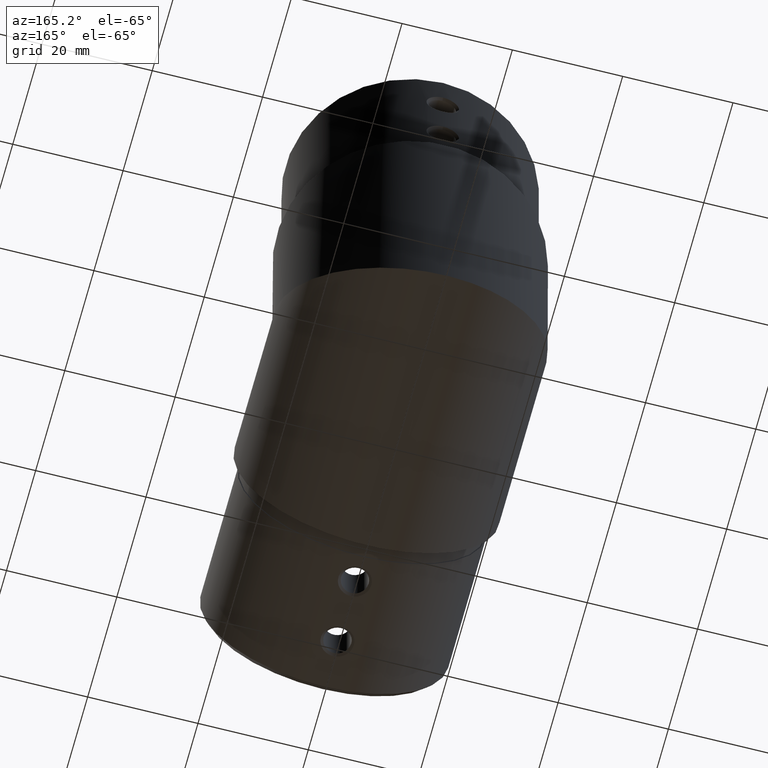
[diagram: clean part render]
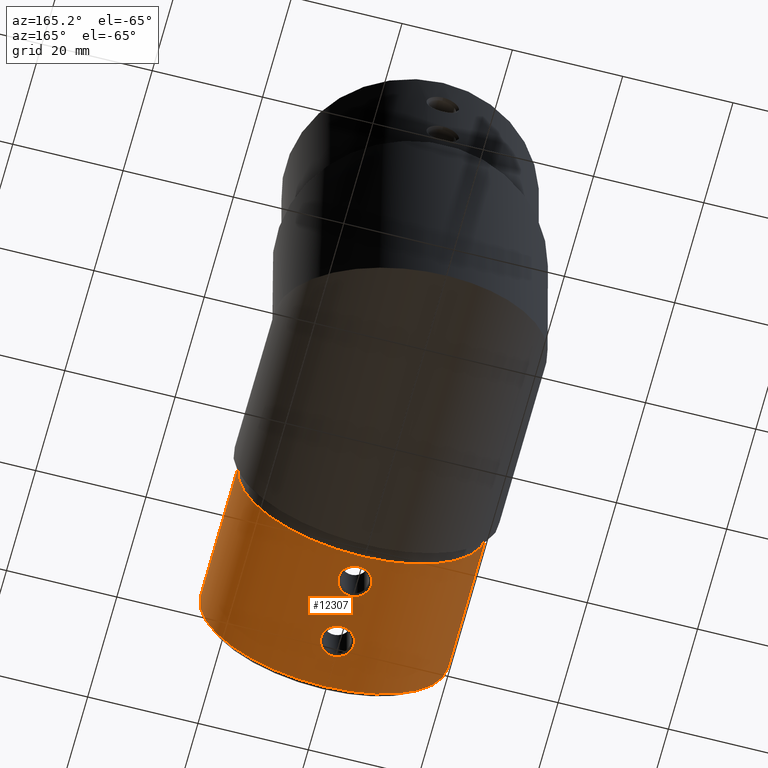
[diagram: same view with one face highlighted and labeled with its STEP entity id]
A machine part, auxiliary view. The second image highlights one B-rep face of the part: STEP entity #12307.
In plain terms, the highlighted cylindrical surface (partial cylindrical patch) has radius 22.6 mm, axis along (-0, 1, 0).
Its self-contained STEP definition (entity closure, byte-faithful):
#543 = EDGE_CURVE ( 'NONE', #2786, #13489, #6899, .T. ) ;
#562 = ORIENTED_EDGE ( 'NONE', *, *, #16241, .T. ) ;
#581 = CARTESIAN_POINT ( 'NONE',  ( -1.326337698880839300, -5.359213336770104700, -22.56176959929415200 ) ) ;
#657 = EDGE_LOOP ( 'NONE', ( #19417 ) ) ;
#667 = CARTESIAN_POINT ( 'NONE',  ( -2.390604519456232900, -6.193039404686122600, -22.47490955274698600 ) ) ;
#683 = AXIS2_PLACEMENT_3D ( 'NONE', #1162, #9286, #24886 ) ;
#758 = CARTESIAN_POINT ( 'NONE',  ( -2.613178896363155300, -9.480944656250821700, -22.44892643107421600 ) ) ;
#774 = DIRECTION ( 'NONE',  ( 0.0000000000000000000, 1.151365138922659600E-016, -1.000000000000000000 ) ) ;
#842 = CARTESIAN_POINT ( 'NONE',  ( -1.977102082033717500, -10.21335442795362200, -22.51378296659726500 ) ) ;
#897 = B_SPLINE_CURVE_WITH_KNOTS ( 'NONE', 3,
 ( #22359, #18223, #8723, #24150, #18406, #2904, #6637, #14278, #16601, #12413, #581, #16349, #24332, #14366, #16434, #8547, #667, #4875, #6457, #20392, #2644, #4622, #20304, #10617, #22097, #22189, #18313, #6552, #4709, #8633, #22272, #10531, #24240, #12502, #758, #22449, #12586, #842, #2555, #2823, #14546, #16516, #4790, #6722, #20479, #10347, #24414, #12672, #6378, #24061, #14631, #16264, #8367, #12325, #4532, #6812, #22862, #20570, #22614, #14882, #7139, #22699, #10864, #1181, #18580, #14803, #3159, #17016, #16862, #20815, #3323, #1346, #5193, #1095, #4959, #20895, #18672, #6974, #9142, #1011, #15050, #8810, #2989, #12842, #22529, #11030, #1265, #5116, #14716, #3075, #16687, #16775, #10944, #3235 ),
 .UNSPECIFIED., .T., .F.,
 ( 4, 3, 3, 3, 3, 3, 3, 3, 3, 3, 3, 3, 3, 3, 3, 3, 3, 3, 3, 3, 3, 3, 3, 3, 3, 3, 3, 3, 3, 3, 3, 4 ),
 ( 0.0000000000000000000, 0.03225806451612903100, 0.06451612903225806300, 0.09677419354838709400, 0.1290322580645161300, 0.1612903225806451600, 0.1935483870967741900, 0.2258064516129032200, 0.2580645161290322500, 0.2903225806451613100, 0.3225806451612903100, 0.3548387096774193700, 0.3870967741935483800, 0.4193548387096774400, 0.4516129032258064400, 0.4838709677419355000, 0.5161290322580645000, 0.5483870967741935100, 0.5806451612903226200, 0.6129032258064516200, 0.6451612903225806300, 0.6774193548387096300, 0.7096774193548387500, 0.7419354838709677500, 0.7741935483870967500, 0.8064516129032257600, 0.8387096774193548700, 0.8709677419354838700, 0.9032258064516128800, 0.9354838709677418800, 0.9677419354838710000, 1.000000000000000000 ),
 .UNSPECIFIED. ) ;
#1011 = CARTESIAN_POINT ( 'NONE',  ( 2.687973759435458000, -6.697077862210337100, -22.43970750469710000 ) ) ;
#1095 = CARTESIAN_POINT ( 'NONE',  ( 2.971803728754243600, -8.384251366339093200, -22.40379175687139600 ) ) ;
#1162 = CARTESIAN_POINT ( 'NONE',  ( 0.0000000000000000000, -28.99999999999995700, -9.908740494779514200E-015 ) ) ;
#1181 = CARTESIAN_POINT ( 'NONE',  ( 2.487021273415073600, -9.632363798055436600, -22.46274082087003900 ) ) ;
#1187 = ORIENTED_EDGE ( 'NONE', *, *, #21586, .T. ) ;
#1233 = CARTESIAN_POINT ( 'NONE',  ( -0.7738739005273017600, -17.15989228895323400, -22.58694319684312600 ) ) ;
#1265 = CARTESIAN_POINT ( 'NONE',  ( 1.823197565090483300, -5.662675194427818000, -22.52692544673682200 ) ) ;
#1317 = CARTESIAN_POINT ( 'NONE',  ( -1.497696329826864600, -17.44909389216724400, -22.55091547564228100 ) ) ;
#1346 = CARTESIAN_POINT ( 'NONE',  ( 2.894935648767667800, -8.763426603945360300, -22.41385397643587800 ) ) ;
#1397 = CARTESIAN_POINT ( 'NONE',  ( -1.325735578226284500, -22.63587769916164700, -22.56124937271163600 ) ) ;
#1476 = CARTESIAN_POINT ( 'NONE',  ( -2.933401760772099500, -20.57368071205420900, -22.40881866832563300 ) ) ;
#1553 = CARTESIAN_POINT ( 'NONE',  ( 2.541295919897478500, -21.55254841856661900, -22.45673166101349600 ) ) ;
#1632 = CARTESIAN_POINT ( 'NONE',  ( -2.861469272052121800, -19.14474227148361500, -22.41811753036150600 ) ) ;
#1680 = DIRECTION ( 'NONE',  ( -0.0000000000000000000, 1.000000000000000000, 2.220446049250313100E-016 ) ) ;
#1715 = CARTESIAN_POINT ( 'NONE',  ( 0.1969980630692054500, -22.93853415989483900, -22.59999972237803000 ) ) ;
#1798 = CARTESIAN_POINT ( 'NONE',  ( 1.498995650706480300, -17.44995110705806200, -22.55081886502875600 ) ) ;
#1886 = CARTESIAN_POINT ( 'NONE',  ( 2.115087779833775300, -17.92230487277924000, -22.50080895620418200 ) ) ;
#1949 = VERTEX_POINT ( 'NONE', #23921 ) ;
#2052 = CARTESIAN_POINT ( 'NONE',  ( 1.145928378313880700, -17.28569521411270700, -22.57092927089568200 ) ) ;
#2139 = CARTESIAN_POINT ( 'NONE',  ( 16.87330316742082200, -3.000000000000011500, 15.03501380845081000 ) ) ;
#2555 = CARTESIAN_POINT ( 'NONE',  ( -1.826053440657694700, -10.33520990646318600, -22.52669625764502100 ) ) ;
#2644 = CARTESIAN_POINT ( 'NONE',  ( -2.832794729824117800, -7.052143573989511100, -22.42177757547298700 ) ) ;
#2786 = VERTEX_POINT ( 'NONE', #2139 ) ;
#2823 = CARTESIAN_POINT ( 'NONE',  ( -1.663659575475260800, -10.44200332703378500, -22.53868312073555600 ) ) ;
#2904 = CARTESIAN_POINT ( 'NONE',  ( -0.7738739005273651500, -5.159892288953273000, -22.58694319684312300 ) ) ;
#2989 = CARTESIAN_POINT ( 'NONE',  ( 2.377100146294064000, -6.206235922144014000, -22.47490535153881900 ) ) ;
#3075 = CARTESIAN_POINT ( 'NONE',  ( 1.327890010846826800, -5.359850248977938500, -22.56169106027611100 ) ) ;
#3159 = CARTESIAN_POINT ( 'NONE',  ( 2.637630470259763700, -9.385499585644453200, -22.44555424805450300 ) ) ;
#3235 = CARTESIAN_POINT ( 'NONE',  ( 2.767701766073018500E-015, -5.061466985404423200, -22.60000000000000500 ) ) ;
#3294 = CARTESIAN_POINT ( 'NONE',  ( -1.977412743205716300, -17.78701949435175700, -22.51375082446630300 ) ) ;
#3323 = CARTESIAN_POINT ( 'NONE',  ( 2.838436988517620400, -8.946070712556846200, -22.42117168712738400 ) ) ;
#3375 = CARTESIAN_POINT ( 'NONE',  ( 0.7779561896573219400, -22.84386517411879000, -22.58741769300685900 ) ) ;
#3457 = CARTESIAN_POINT ( 'NONE',  ( -1.582462642883853700, -22.49540003731581100, -22.54467655228083700 ) ) ;
#3534 = CARTESIAN_POINT ( 'NONE',  ( -2.392648004980347600, -21.80481490877142300, -22.47471156574810500 ) ) ;
#3611 = CARTESIAN_POINT ( 'NONE',  ( -2.890143814281124900, -19.23734096898104800, -22.41445748524989800 ) ) ;
#3666 = CARTESIAN_POINT ( 'NONE',  ( -16.87330316742081800, -3.000000000000009800, 15.03501380845080800 ) ) ;
#3685 = CARTESIAN_POINT ( 'NONE',  ( -2.990952906805681300, -19.99834613347144000, -22.40120980459026300 ) ) ;
#4092 = FACE_BOUND ( 'NONE', #14907, .T. ) ;
#4099 = AXIS2_PLACEMENT_3D ( 'NONE', #5447, #1680, #21215 ) ;
#4117 = CARTESIAN_POINT ( 'NONE',  ( 2.767701766073018500E-015, -17.06146698540439700, -22.60000000000000900 ) ) ;
#4349 = EDGE_LOOP ( 'NONE', ( #23498, #562, #24398, #1187 ) ) ;
#4532 = CARTESIAN_POINT ( 'NONE',  ( 0.5865686762982075300, -10.88146977777764400, -22.59238670853493900 ) ) ;
#4622 = CARTESIAN_POINT ( 'NONE',  ( -2.861469272052092000, -7.144742271483621300, -22.41811753036151000 ) ) ;
#4709 = CARTESIAN_POINT ( 'NONE',  ( -2.991098280361415000, -8.190834749636358900, -22.40119039468058300 ) ) ;
#4790 = CARTESIAN_POINT ( 'NONE',  ( -1.412445431428197600, -10.59022999176591500, -22.55581960167349100 ) ) ;
#4875 = CARTESIAN_POINT ( 'NONE',  ( -2.613044481667943200, -6.519646402548486800, -22.44893621583444700 ) ) ;
#4925 = CARTESIAN_POINT ( 'NONE',  ( -2.390604519445221200, -18.19303940470040700, -22.47490955274802400 ) ) ;
#4959 = CARTESIAN_POINT ( 'NONE',  ( 2.991013700202139100, -8.189898829850953600, -22.40120168760934800 ) ) ;
#5116 = CARTESIAN_POINT ( 'NONE',  ( 1.661096607872172500, -5.556313150729121900, -22.53887215588472500 ) ) ;
#5193 = CARTESIAN_POINT ( 'NONE',  ( 2.933369688760955700, -8.573838985142227600, -22.40882286665363700 ) ) ;
#5310 = VERTEX_POINT ( 'NONE', #6454 ) ;
#5326 = CARTESIAN_POINT ( 'NONE',  ( -2.971600802076045600, -19.61475383865677800, -22.40381835401876400 ) ) ;
#5401 = LINE ( 'NONE', #11085, #19810 ) ;
#5408 = CARTESIAN_POINT ( 'NONE',  ( -2.990807533249906700, -19.80585751730891500, -22.40122921449995300 ) ) ;
#5447 = CARTESIAN_POINT ( 'NONE',  ( 0.0000000000000000000, -29.99999999999999300, -1.013078509970455300E-014 ) ) ;
#5473 = CARTESIAN_POINT ( 'NONE',  ( 2.684033548438164600, -21.30024483960096400, -22.44010131196014500 ) ) ;
#5551 = CARTESIAN_POINT ( 'NONE',  ( -1.663659575475291000, -22.44200332703381700, -22.53868312073555600 ) ) ;
#5624 = CARTESIAN_POINT ( 'NONE',  ( 0.3951811629390930000, -22.91907438143658400, -22.59735572406301800 ) ) ;
#5648 = EDGE_CURVE ( 'NONE', #21887, #21887, #11102, .T. ) ;
#5880 = CARTESIAN_POINT ( 'NONE',  ( 1.976558561754066200, -17.78617842668112900, -22.51383077496992900 ) ) ;
#6053 = CARTESIAN_POINT ( 'NONE',  ( 1.823197565037884400, -17.66267519440014400, -22.52692544674070200 ) ) ;
#6378 = CARTESIAN_POINT ( 'NONE',  ( -0.5865997516973574500, -10.88146367151698100, -22.59238590169947300 ) ) ;
#6454 = CARTESIAN_POINT ( 'NONE',  ( 2.767701766073018500E-015, -5.061466985404423200, -22.60000000000000500 ) ) ;
#6457 = CARTESIAN_POINT ( 'NONE',  ( -2.762707068371181900, -6.874112676306205000, -22.43050266165188200 ) ) ;
#6552 = CARTESIAN_POINT ( 'NONE',  ( -2.990952906805640900, -7.998346133471430100, -22.40120980459027000 ) ) ;
#6637 = CARTESIAN_POINT ( 'NONE',  ( -0.8680582148432545200, -5.187948653608940800, -22.58332293830213200 ) ) ;
#6722 = CARTESIAN_POINT ( 'NONE',  ( -1.325735578231539600, -10.63587769915537800, -22.56124937271130900 ) ) ;
#6812 = CARTESIAN_POINT ( 'NONE',  ( 0.7779561895228125400, -10.84386517415203400, -22.58741769301035200 ) ) ;
#6899 = CIRCLE ( 'NONE', #24190, 22.60000000000000100 ) ;
#6974 = CARTESIAN_POINT ( 'NONE',  ( 2.912292899449808300, -7.228464680262484300, -22.41207829227147000 ) ) ;
#7028 = CARTESIAN_POINT ( 'NONE',  ( -0.1965416074626311100, -17.06146707797937600, -22.60000000000000900 ) ) ;
#7108 = CARTESIAN_POINT ( 'NONE',  ( -0.9622425291592274800, -17.21600501826461000, -22.57970267976114800 ) ) ;
#7139 = CARTESIAN_POINT ( 'NONE',  ( 2.115986901070406200, -10.07681125114746700, -22.50072442021587100 ) ) ;
#7266 = CARTESIAN_POINT ( 'NONE',  ( -0.7796886660452817500, -22.84351257797207800, -22.58737244673703900 ) ) ;
#7343 = CARTESIAN_POINT ( 'NONE',  ( -0.1969343592547744300, -22.93853186896308900, -22.60000027757709500 ) ) ;
#7418 = CARTESIAN_POINT ( 'NONE',  ( 1.509708611825870900, -22.56606131693030900, -22.55245953473893300 ) ) ;
#7503 = CARTESIAN_POINT ( 'NONE',  ( -2.800122715066272900, -18.96272924480776100, -22.42589427310387200 ) ) ;
#7589 = CARTESIAN_POINT ( 'NONE',  ( 2.594638885741125100, -18.52565139544481500, -22.45083127010534000 ) ) ;
#8367 = CARTESIAN_POINT ( 'NONE',  ( 0.1969980629276083300, -10.93853415990857200, -22.59999972237803000 ) ) ;
#8547 = CARTESIAN_POINT ( 'NONE',  ( -2.115143335285531600, -5.922359464467992200, -22.50080373389354100 ) ) ;
#8633 = CARTESIAN_POINT ( 'NONE',  ( -2.971493726775368000, -8.385648327147610100, -22.40383228141255900 ) ) ;
#8723 = CARTESIAN_POINT ( 'NONE',  ( -0.3916466878908976300, -5.080439317169457100, -22.59742119764640800 ) ) ;
#8810 = CARTESIAN_POINT ( 'NONE',  ( 2.485869516017699300, -6.365943658798020300, -22.46286831082206700 ) ) ;
#9142 = CARTESIAN_POINT ( 'NONE',  ( 2.762746806106908300, -6.874206801561052200, -22.43049776722189000 ) ) ;
#9145 = CIRCLE ( 'NONE', #683, 22.60000000000000100 ) ;
#9269 = CARTESIAN_POINT ( 'NONE',  ( -2.933350360385683900, -19.42606565261733900, -22.40882539677672700 ) ) ;
#9286 = DIRECTION ( 'NONE',  ( -0.0000000000000000000, 1.000000000000000000, 2.220446049250313100E-016 ) ) ;
#9345 = CARTESIAN_POINT ( 'NONE',  ( -2.914225139540502800, -19.33172155959761800, -22.41132891815570700 ) ) ;
#9419 = CARTESIAN_POINT ( 'NONE',  ( 3.185190721551148500E-005, -22.93853301442896600, -22.59999999997756200 ) ) ;
#9493 = CARTESIAN_POINT ( 'NONE',  ( 2.115986901070435500, -22.07681125114750400, -22.50072442021586700 ) ) ;
#9573 = CARTESIAN_POINT ( 'NONE',  ( -1.145841142355355400, -22.71434033402758600, -22.57093369970516200 ) ) ;
#10347 = CARTESIAN_POINT ( 'NONE',  ( -1.145841142355345200, -10.71434033402754300, -22.57093369970516200 ) ) ;
#10531 = CARTESIAN_POINT ( 'NONE',  ( -2.895309794768751800, -8.761713096960788100, -22.41380505523872600 ) ) ;
#10617 = CARTESIAN_POINT ( 'NONE',  ( -2.914225139547568200, -7.331721559634393900, -22.41132891815477600 ) ) ;
#10836 = FACE_OUTER_BOUND ( 'NONE', #4349, .T. ) ;
#10864 = CARTESIAN_POINT ( 'NONE',  ( 2.378471980544246000, -9.791994556888095500, -22.47475914057272900 ) ) ;
#10944 = CARTESIAN_POINT ( 'NONE',  ( 0.3934408959884866400, -5.061466800086005700, -22.60000000000000500 ) ) ;
#10996 = CARTESIAN_POINT ( 'NONE',  ( -0.5834991309870424200, -17.11792871956680200, -22.59246619482117800 ) ) ;
#11030 = CARTESIAN_POINT ( 'NONE',  ( 1.976558561793002600, -5.786178426719424700, -22.51383077496626200 ) ) ;
#11085 = CARTESIAN_POINT ( 'NONE',  ( -16.87330316742081800, -29.99999999999999600, 15.03501380845080400 ) ) ;
#11102 = B_SPLINE_CURVE_WITH_KNOTS ( 'NONE', 3,
 ( #16827, #7028, #22750, #10996, #12971, #1233, #18876, #7108, #18960, #13047, #22916, #1317, #15017, #11158, #3294, #16651, #4925, #16987, #24871, #7503, #17389, #1632, #3611, #9345, #9269, #5326, #5408, #3685, #11307, #21249, #1476, #17306, #19198, #15253, #17067, #3534, #21024, #15416, #19047, #5551, #3457, #17147, #23068, #1397, #19277, #9573, #22992, #7266, #11542, #19127, #7343, #9419, #1715, #5624, #13126, #3375, #21100, #15177, #7418, #15099, #9493, #11237, #25029, #23220, #1553, #17230, #13280, #5473, #21171, #11465, #23143, #11384, #13200, #24954, #25105, #13359, #15329, #25185, #13445, #19357, #7589, #21334, #23307, #21767, #1886, #5880, #6053, #25352, #1798, #15489, #2052, #23392, #19701, #4117 ),
 .UNSPECIFIED., .T., .F.,
 ( 4, 3, 3, 3, 3, 3, 3, 3, 3, 3, 3, 3, 3, 3, 3, 3, 3, 3, 3, 3, 3, 3, 3, 3, 3, 3, 3, 3, 3, 3, 3, 4 ),
 ( 0.0000000000000000000, 0.03225806451612903100, 0.06451612903225806300, 0.09677419354838709400, 0.1290322580645161300, 0.1612903225806451600, 0.1935483870967741900, 0.2258064516129032200, 0.2580645161290322500, 0.2903225806451613100, 0.3225806451612903100, 0.3548387096774193700, 0.3870967741935483800, 0.4193548387096774400, 0.4516129032258064400, 0.4838709677419355000, 0.5161290322580645000, 0.5483870967741935100, 0.5806451612903226200, 0.6129032258064516200, 0.6451612903225806300, 0.6774193548387096300, 0.7096774193548387500, 0.7419354838709677500, 0.7741935483870967500, 0.8064516129032257600, 0.8387096774193548700, 0.8709677419354838700, 0.9032258064516128800, 0.9354838709677418800, 0.9677419354838710000, 1.000000000000000000 ),
 .UNSPECIFIED. ) ;
#11158 = CARTESIAN_POINT ( 'NONE',  ( -1.824730499025512200, -17.66368569811348600, -22.52681161842184900 ) ) ;
#11237 = CARTESIAN_POINT ( 'NONE',  ( 2.254570409734729000, -21.94052367489877400, -22.48769191141475000 ) ) ;
#11307 = CARTESIAN_POINT ( 'NONE',  ( -2.991098280361455400, -20.19083474963396400, -22.40119039468057600 ) ) ;
#11384 = CARTESIAN_POINT ( 'NONE',  ( 2.894935648768384200, -20.76342660394551500, -22.41385397643578900 ) ) ;
#11465 = CARTESIAN_POINT ( 'NONE',  ( 2.763739915961720900, -21.12343785515739500, -22.43037542434188200 ) ) ;
#11542 = CARTESIAN_POINT ( 'NONE',  ( -0.5865997516973775500, -22.88146367151702500, -22.59238590169946900 ) ) ;
#12030 = DIRECTION ( 'NONE',  ( 0.0000000000000000000, -1.000000000000000000, -2.220446049250313100E-016 ) ) ;
#12042 = FACE_BOUND ( 'NONE', #657, .T. ) ;
#12307 = ADVANCED_FACE ( 'NONE', ( #12042, #4092, #10836 ), #24944, .T. ) ;
#12325 = CARTESIAN_POINT ( 'NONE',  ( 0.3951811630736025700, -10.91907438140325400, -22.59735572405952200 ) ) ;
#12413 = CARTESIAN_POINT ( 'NONE',  ( -1.145962326133435500, -5.285709048506994600, -22.57092754733582400 ) ) ;
#12502 = CARTESIAN_POINT ( 'NONE',  ( -2.763704227972418900, -9.123522596018865700, -22.43037982157876400 ) ) ;
#12586 = CARTESIAN_POINT ( 'NONE',  ( -2.115617389682282300, -10.07717458823106000, -22.50075916631424300 ) ) ;
#12672 = CARTESIAN_POINT ( 'NONE',  ( -0.7796886660753206100, -10.84351257796911300, -22.58737244673626100 ) ) ;
#12842 = CARTESIAN_POINT ( 'NONE',  ( 2.253616997874507100, -6.058431318839081000, -22.48778713744209400 ) ) ;
#12971 = CARTESIAN_POINT ( 'NONE',  ( -0.6794253524677395000, -17.13667342074543100, -22.58998869341029800 ) ) ;
#13047 = CARTESIAN_POINT ( 'NONE',  ( -1.145962326133455700, -17.28570904850697000, -22.57092754733582800 ) ) ;
#13080 = ORIENTED_EDGE ( 'NONE', *, *, #5648, .T. ) ;
#13126 = CARTESIAN_POINT ( 'NONE',  ( 0.5865686762982075300, -22.88146977777768900, -22.59238670853493900 ) ) ;
#13200 = CARTESIAN_POINT ( 'NONE',  ( 2.933369688760995200, -20.57383898514224500, -22.40882286665363300 ) ) ;
#13280 = CARTESIAN_POINT ( 'NONE',  ( 2.637630470259793500, -21.38549958564447500, -22.44555424805450300 ) ) ;
#13359 = CARTESIAN_POINT ( 'NONE',  ( 2.990953015053389400, -19.99854733156922400, -22.40120979013730500 ) ) ;
#13445 = CARTESIAN_POINT ( 'NONE',  ( 2.762746806106948200, -18.87420680156105500, -22.43049776722189000 ) ) ;
#13489 = VERTEX_POINT ( 'NONE', #3666 ) ;
#14278 = CARTESIAN_POINT ( 'NONE',  ( -0.9622425291591438800, -5.216005018264608500, -22.57970267976114400 ) ) ;
#14366 = CARTESIAN_POINT ( 'NONE',  ( -1.824730499117604100, -5.663685698180874100, -22.52681161841506000 ) ) ;
#14546 = CARTESIAN_POINT ( 'NONE',  ( -1.582462642884044000, -10.49540003731908500, -22.54467655228082600 ) ) ;
#14631 = CARTESIAN_POINT ( 'NONE',  ( -0.1969343591131572400, -10.93853186894927100, -22.60000027757709500 ) ) ;
#14716 = CARTESIAN_POINT ( 'NONE',  ( 1.498995650653861800, -5.449951107030425800, -22.55081886503263200 ) ) ;
#14803 = CARTESIAN_POINT ( 'NONE',  ( 2.591227392113582400, -9.470754331615044200, -22.45100718414508000 ) ) ;
#14882 = CARTESIAN_POINT ( 'NONE',  ( 1.838819883965221200, -10.34938640343890300, -22.52678943779710300 ) ) ;
#14907 = EDGE_LOOP ( 'NONE', ( #13080 ) ) ;
#15017 = CARTESIAN_POINT ( 'NONE',  ( -1.661213414426188300, -17.55638979514036500, -22.53886354703206500 ) ) ;
#15050 = CARTESIAN_POINT ( 'NONE',  ( 2.594638885741334700, -6.525651395452026500, -22.45083127010531500 ) ) ;
#15099 = CARTESIAN_POINT ( 'NONE',  ( 1.838819883741849000, -22.34938640364496000, -22.52678943781810600 ) ) ;
#15177 = CARTESIAN_POINT ( 'NONE',  ( 1.145964066256060400, -22.71429024234638700, -22.57092745898693300 ) ) ;
#15253 = CARTESIAN_POINT ( 'NONE',  ( -2.763704227972448600, -21.12352259601889100, -22.43037982157876100 ) ) ;
#15329 = CARTESIAN_POINT ( 'NONE',  ( 2.990831644755828700, -19.61584433500538400, -22.40122599519322900 ) ) ;
#15416 = CARTESIAN_POINT ( 'NONE',  ( -1.977102082033295200, -22.21335442796092600, -22.51378296659730400 ) ) ;
#15489 = CARTESIAN_POINT ( 'NONE',  ( 1.327890010846980900, -17.35985024897798100, -22.56169106027610700 ) ) ;
#16241 = EDGE_CURVE ( 'NONE', #2786, #23058, #20218, .T. ) ;
#16264 = CARTESIAN_POINT ( 'NONE',  ( 3.185190722554790400E-005, -10.93853301442892200, -22.59999999997756200 ) ) ;
#16349 = CARTESIAN_POINT ( 'NONE',  ( -1.497696329734732300, -5.449093892099908100, -22.55091547564907000 ) ) ;
#16365 = DIRECTION ( 'NONE',  ( -0.0000000000000000000, 1.000000000000000000, 1.058152263001196400E-016 ) ) ;
#16434 = CARTESIAN_POINT ( 'NONE',  ( -1.977412743200180700, -5.787019494358927000, -22.51375082446681800 ) ) ;
#16516 = CARTESIAN_POINT ( 'NONE',  ( -1.499155284624855700, -10.54458228437645000, -22.55038983063567300 ) ) ;
#16601 = CARTESIAN_POINT ( 'NONE',  ( -1.055774639759733600, -5.248956904375440000, -22.57550652135666200 ) ) ;
#16651 = CARTESIAN_POINT ( 'NONE',  ( -2.115143335285551500, -17.92235946446797400, -22.50080373389354400 ) ) ;
#16687 = CARTESIAN_POINT ( 'NONE',  ( 1.145928378313860500, -5.285695214112719100, -22.57092927089567900 ) ) ;
#16719 = EDGE_CURVE ( 'NONE', #23058, #1949, #9145, .T. ) ;
#16775 = CARTESIAN_POINT ( 'NONE',  ( 0.7820051132479277600, -5.137385144382280400, -22.58940569213480700 ) ) ;
#16827 = CARTESIAN_POINT ( 'NONE',  ( 2.767701766073018500E-015, -17.06146698540439700, -22.60000000000000900 ) ) ;
#16862 = CARTESIAN_POINT ( 'NONE',  ( 2.726391379683726200, -9.212121426457635200, -22.43497729294913900 ) ) ;
#16987 = CARTESIAN_POINT ( 'NONE',  ( -2.613044481590966600, -18.51964640229992300, -22.44893621584393600 ) ) ;
#17016 = CARTESIAN_POINT ( 'NONE',  ( 2.684033548405945000, -9.300244839673862200, -22.44010131196392900 ) ) ;
#17067 = CARTESIAN_POINT ( 'NONE',  ( -2.613178896363211700, -21.48094465625080200, -22.44892643107420900 ) ) ;
#17147 = CARTESIAN_POINT ( 'NONE',  ( -1.499155284630151000, -22.54458228437027500, -22.55038983063533900 ) ) ;
#17230 = CARTESIAN_POINT ( 'NONE',  ( 2.591227392081422800, -21.47075433168798900, -22.45100718414886000 ) ) ;
#17306 = CARTESIAN_POINT ( 'NONE',  ( -2.895309794766747700, -20.76171309697435100, -22.41380505523898500 ) ) ;
#17389 = CARTESIAN_POINT ( 'NONE',  ( -2.832794729823119100, -19.05214357398618600, -22.42177757547311500 ) ) ;
#18223 = CARTESIAN_POINT ( 'NONE',  ( -0.1965416074625642200, -5.061467077979394000, -22.60000000000000500 ) ) ;
#18313 = CARTESIAN_POINT ( 'NONE',  ( -2.990807533249866700, -7.805857517306501200, -22.40122921449996000 ) ) ;
#18382 = EDGE_CURVE ( 'NONE', #5310, #5310, #897, .T. ) ;
#18406 = CARTESIAN_POINT ( 'NONE',  ( -0.6794253525351148200, -5.136673420765514000, -22.58998869340855700 ) ) ;
#18580 = CARTESIAN_POINT ( 'NONE',  ( 2.541295919850487200, -9.552548418639109000, -22.45673166101869400 ) ) ;
#18672 = CARTESIAN_POINT ( 'NONE',  ( 2.990831644755798500, -7.615844335005701500, -22.40122599519323300 ) ) ;
#18876 = CARTESIAN_POINT ( 'NONE',  ( -0.8680582148432646200, -17.18794865360892000, -22.58332293830213500 ) ) ;
#18960 = CARTESIAN_POINT ( 'NONE',  ( -1.055774639685947300, -17.24895690434533800, -22.57550652136041000 ) ) ;
#19047 = CARTESIAN_POINT ( 'NONE',  ( -1.826053440658165400, -22.33520990646982100, -22.52669625764498900 ) ) ;
#19127 = CARTESIAN_POINT ( 'NONE',  ( -0.3935108373494734000, -22.91941476506197300, -22.59739935666189900 ) ) ;
#19198 = CARTESIAN_POINT ( 'NONE',  ( -2.838966893777067100, -20.94481156590293100, -22.42110651683103500 ) ) ;
#19277 = CARTESIAN_POINT ( 'NONE',  ( -1.236038930803345500, -22.67758518198395000, -22.56635469830769500 ) ) ;
#19357 = CARTESIAN_POINT ( 'NONE',  ( 2.687973759448500500, -18.69707786223424200, -22.43970750469550200 ) ) ;
#19417 = ORIENTED_EDGE ( 'NONE', *, *, #18382, .T. ) ;
#19660 = CARTESIAN_POINT ( 'NONE',  ( 16.87330316742081800, -29.99999999999999600, 15.03501380845080400 ) ) ;
#19701 = CARTESIAN_POINT ( 'NONE',  ( 0.3934408958459962900, -17.06146680008596000, -22.60000000000000900 ) ) ;
#19810 = VECTOR ( 'NONE', #20791, 1000.000000000000000 ) ;
#20218 = LINE ( 'NONE', #19660, #22061 ) ;
#20304 = CARTESIAN_POINT ( 'NONE',  ( -2.890143814280066200, -7.237340968977731500, -22.41445748525003300 ) ) ;
#20392 = CARTESIAN_POINT ( 'NONE',  ( -2.800122715046991400, -6.962729244745634800, -22.42589427310624100 ) ) ;
#20479 = CARTESIAN_POINT ( 'NONE',  ( -1.236038930734427100, -10.67758518200795400, -22.56635469831119100 ) ) ;
#20570 = CARTESIAN_POINT ( 'NONE',  ( 1.145964066256060400, -10.71429024234634400, -22.57092745898693300 ) ) ;
#20791 = DIRECTION ( 'NONE',  ( -0.0000000000000000000, 1.000000000000000000, 2.220446049250313100E-016 ) ) ;
#20815 = CARTESIAN_POINT ( 'NONE',  ( 2.763739915961691100, -9.123437855157371600, -22.43037542434188600 ) ) ;
#20895 = CARTESIAN_POINT ( 'NONE',  ( 2.990953015053358800, -7.998547331569202600, -22.40120979013730800 ) ) ;
#21024 = CARTESIAN_POINT ( 'NONE',  ( -2.115617389682312500, -22.07717458823109200, -22.50075916631423900 ) ) ;
#21100 = CARTESIAN_POINT ( 'NONE',  ( 0.9640917934711553700, -22.78840470505442500, -22.58016142111093300 ) ) ;
#21171 = CARTESIAN_POINT ( 'NONE',  ( 2.726391379679791600, -21.21212142647049200, -22.43497729294962500 ) ) ;
#21215 = DIRECTION ( 'NONE',  ( 0.0000000000000000000, -1.535153518563546100E-016, 1.000000000000000000 ) ) ;
#21249 = CARTESIAN_POINT ( 'NONE',  ( -2.971493726777451300, -20.38564832713406700, -22.40383228141228500 ) ) ;
#21334 = CARTESIAN_POINT ( 'NONE',  ( 2.485869516017730000, -18.36594365879801000, -22.46286831082206700 ) ) ;
#21578 = CARTESIAN_POINT ( 'NONE',  ( 16.87330316742081500, -28.99999999999996100, 15.03501380845080400 ) ) ;
#21586 = EDGE_CURVE ( 'NONE', #1949, #13489, #5401, .T. ) ;
#21767 = CARTESIAN_POINT ( 'NONE',  ( 2.253616997913483900, -18.05843131887735400, -22.48778713743843800 ) ) ;
#21887 = VERTEX_POINT ( 'NONE', #23457 ) ;
#22061 = VECTOR ( 'NONE', #12030, 1000.000000000000000 ) ;
#22097 = CARTESIAN_POINT ( 'NONE',  ( -2.933350360385643900, -7.426065652617335600, -22.40882539677672700 ) ) ;
#22189 = CARTESIAN_POINT ( 'NONE',  ( -2.971600802061795200, -7.614753838583219200, -22.40381835402062900 ) ) ;
#22206 = CARTESIAN_POINT ( 'NONE',  ( 0.0000000000000000000, -3.000000000000009800, -4.135580766728712100E-015 ) ) ;
#22272 = CARTESIAN_POINT ( 'NONE',  ( -2.933401760772059900, -8.573680712054198200, -22.40881866832564000 ) ) ;
#22359 = CARTESIAN_POINT ( 'NONE',  ( 2.767701766073018500E-015, -5.061466985404423200, -22.60000000000000500 ) ) ;
#22449 = CARTESIAN_POINT ( 'NONE',  ( -2.392648004979411900, -9.804814908785941100, -22.47471156574819400 ) ) ;
#22529 = CARTESIAN_POINT ( 'NONE',  ( 2.115087779833754800, -5.922304872779252900, -22.50080895620417800 ) ) ;
#22614 = CARTESIAN_POINT ( 'NONE',  ( 1.509708611572396300, -10.56606131704981900, -22.55245953475180100 ) ) ;
#22699 = CARTESIAN_POINT ( 'NONE',  ( 2.254570409622998400, -9.940523675001749400, -22.48769191142525900 ) ) ;
#22750 = CARTESIAN_POINT ( 'NONE',  ( -0.3916466880256484500, -17.08043931720954600, -22.59742119764293400 ) ) ;
#22862 = CARTESIAN_POINT ( 'NONE',  ( 0.9640917935978925400, -10.78840470499460700, -22.58016142110449900 ) ) ;
#22916 = CARTESIAN_POINT ( 'NONE',  ( -1.326337699028472300, -17.35921333683023300, -22.56176959928666300 ) ) ;
#22992 = CARTESIAN_POINT ( 'NONE',  ( -0.9654455654593754300, -22.78785063811485800, -22.58009170250010200 ) ) ;
#23058 = VERTEX_POINT ( 'NONE', #21578 ) ;
#23068 = CARTESIAN_POINT ( 'NONE',  ( -1.412445431428217800, -22.59022999176596300, -22.55581960167348800 ) ) ;
#23143 = CARTESIAN_POINT ( 'NONE',  ( 2.838436988525579400, -20.94607071253120600, -22.42117168712640000 ) ) ;
#23220 = CARTESIAN_POINT ( 'NONE',  ( 2.487021273415093600, -21.63236379805546900, -22.46274082087003900 ) ) ;
#23307 = CARTESIAN_POINT ( 'NONE',  ( 2.377100146294334400, -18.20623592215120500, -22.47490535153879400 ) ) ;
#23392 = CARTESIAN_POINT ( 'NONE',  ( 0.7820051132476806300, -17.13738514438216500, -22.58940569213482500 ) ) ;
#23457 = CARTESIAN_POINT ( 'NONE',  ( 2.767701766073018500E-015, -17.06146698540439700, -22.60000000000000900 ) ) ;
#23498 = ORIENTED_EDGE ( 'NONE', *, *, #543, .F. ) ;
#23921 = CARTESIAN_POINT ( 'NONE',  ( -16.87330316742081500, -28.99999999999996100, 15.03501380845080400 ) ) ;
#24061 = CARTESIAN_POINT ( 'NONE',  ( -0.3935108373193944000, -10.91941476506484700, -22.59739935666268100 ) ) ;
#24150 = CARTESIAN_POINT ( 'NONE',  ( -0.5834991309870424200, -5.117928719566828400, -22.59246619482117400 ) ) ;
#24190 = AXIS2_PLACEMENT_3D ( 'NONE', #22206, #16365, #774 ) ;
#24240 = CARTESIAN_POINT ( 'NONE',  ( -2.838966893777050700, -8.944811565902888600, -22.42110651683103800 ) ) ;
#24332 = CARTESIAN_POINT ( 'NONE',  ( -1.661213414426168300, -5.556389795140391100, -22.53886354703206500 ) ) ;
#24398 = ORIENTED_EDGE ( 'NONE', *, *, #16719, .T. ) ;
#24414 = CARTESIAN_POINT ( 'NONE',  ( -0.9654455655971818700, -10.78785063806671800, -22.58009170249311000 ) ) ;
#24871 = CARTESIAN_POINT ( 'NONE',  ( -2.762707068371211600, -18.87411267630619300, -22.43050266165188200 ) ) ;
#24886 = DIRECTION ( 'NONE',  ( 0.0000000000000000000, 1.535153518563546100E-016, -1.000000000000000000 ) ) ;
#24944 = CYLINDRICAL_SURFACE ( 'NONE', #4099, 22.60000000000000100 ) ;
#24954 = CARTESIAN_POINT ( 'NONE',  ( 2.971803728753606300, -20.38425136633897900, -22.40379175687147800 ) ) ;
#25029 = CARTESIAN_POINT ( 'NONE',  ( 2.378471980450324300, -21.79199455703316000, -22.47475914058313200 ) ) ;
#25105 = CARTESIAN_POINT ( 'NONE',  ( 2.991013700202169700, -20.18989882985114500, -22.40120168760934000 ) ) ;
#25185 = CARTESIAN_POINT ( 'NONE',  ( 2.912292899423842800, -19.22846468021467800, -22.41207829227467100 ) ) ;
#25352 = CARTESIAN_POINT ( 'NONE',  ( 1.661096607872182500, -17.55631315072910300, -22.53887215588472900 ) ) ;